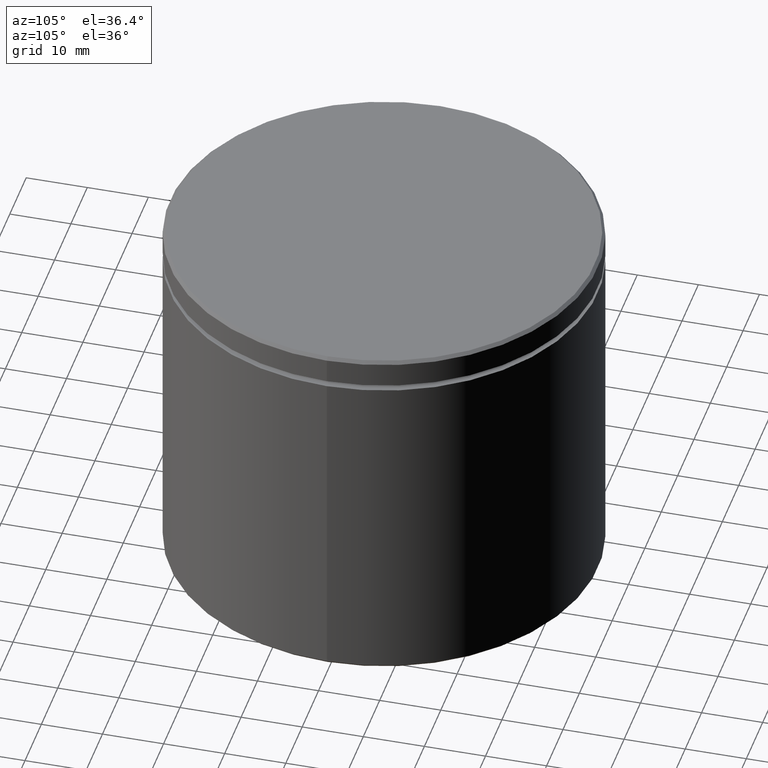
[diagram: clean part render]
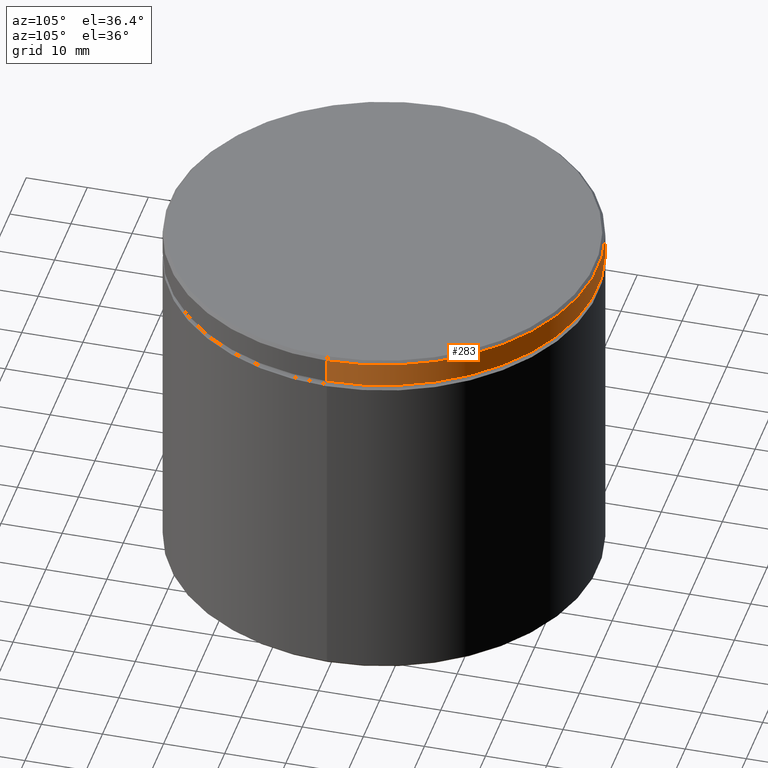
[diagram: same view with one face highlighted and labeled with its STEP entity id]
A machine part, auxiliary view. The second image highlights one B-rep face of the part: STEP entity #283.
In plain terms, the highlighted cylindrical surface (partial cylindrical patch) has radius 35 mm, axis along (-0, -0, 1).
Its self-contained STEP definition (entity closure, byte-faithful):
#26 = EDGE_LOOP ( 'NONE', ( #543, #192, #106, #316 ) ) ;
#27 = VERTEX_POINT ( 'NONE', #367 ) ;
#28 = AXIS2_PLACEMENT_3D ( 'NONE', #562, #87, #421 ) ;
#32 = EDGE_CURVE ( 'NONE', #188, #439, #74, .T. ) ;
#48 = VECTOR ( 'NONE', #539, 1000.000000000000000 ) ;
#56 = CARTESIAN_POINT ( 'NONE',  ( -35.00000000000000000, 4.286263797015736496E-15, -0.4999999999999727995 ) ) ;
#74 = LINE ( 'NONE', #491, #408 ) ;
#87 = DIRECTION ( 'NONE',  ( -0.000000000000000000, -0.000000000000000000, 1.000000000000000000 ) ) ;
#106 = ORIENTED_EDGE ( 'NONE', *, *, #545, .T. ) ;
#127 = AXIS2_PLACEMENT_3D ( 'NONE', #329, #289, #159 ) ;
#135 = DIRECTION ( 'NONE',  ( 1.000000000000000000, 0.000000000000000000, 0.000000000000000000 ) ) ;
#159 = DIRECTION ( 'NONE',  ( 1.000000000000000000, 0.000000000000000000, 0.000000000000000000 ) ) ;
#183 = DIRECTION ( 'NONE',  ( -0.000000000000000000, -0.000000000000000000, 1.000000000000000000 ) ) ;
#188 = VERTEX_POINT ( 'NONE', #264 ) ;
#192 = ORIENTED_EDGE ( 'NONE', *, *, #32, .T. ) ;
#239 = CIRCLE ( 'NONE', #387, 35.00000000000000000 ) ;
#240 = EDGE_CURVE ( 'NONE', #27, #486, #257, .T. ) ;
#257 = LINE ( 'NONE', #354, #48 ) ;
#264 = CARTESIAN_POINT ( 'NONE',  ( -35.00000000000000000, 4.286263797015736496E-15, -4.500000000000000888 ) ) ;
#283 = ADVANCED_FACE ( 'NONE', ( #325 ), #331, .T. ) ;
#289 = DIRECTION ( 'NONE',  ( 0.000000000000000000, 0.000000000000000000, -1.000000000000000000 ) ) ;
#316 = ORIENTED_EDGE ( 'NONE', *, *, #240, .F. ) ;
#325 = FACE_OUTER_BOUND ( 'NONE', #26, .T. ) ;
#329 = CARTESIAN_POINT ( 'NONE',  ( 0.000000000000000000, 0.000000000000000000, -0.4999999999999727995 ) ) ;
#331 = CYLINDRICAL_SURFACE ( 'NONE', #28, 35.00000000000000000 ) ;
#354 = CARTESIAN_POINT ( 'NONE',  ( 35.00000000000000000, 0.000000000000000000, 0.000000000000000000 ) ) ;
#362 = DIRECTION ( 'NONE',  ( -0.000000000000000000, -0.000000000000000000, 1.000000000000000000 ) ) ;
#367 = CARTESIAN_POINT ( 'NONE',  ( 35.00000000000000000, 0.000000000000000000, -4.500000000000000888 ) ) ;
#387 = AXIS2_PLACEMENT_3D ( 'NONE', #428, #183, #135 ) ;
#408 = VECTOR ( 'NONE', #362, 1000.000000000000000 ) ;
#421 = DIRECTION ( 'NONE',  ( 1.000000000000000000, 0.000000000000000000, 0.000000000000000000 ) ) ;
#428 = CARTESIAN_POINT ( 'NONE',  ( 0.000000000000000000, 0.000000000000000000, -4.500000000000000888 ) ) ;
#439 = VERTEX_POINT ( 'NONE', #56 ) ;
#453 = EDGE_CURVE ( 'NONE', #27, #188, #239, .T. ) ;
#457 = CIRCLE ( 'NONE', #127, 35.00000000000000000 ) ;
#486 = VERTEX_POINT ( 'NONE', #536 ) ;
#491 = CARTESIAN_POINT ( 'NONE',  ( -35.00000000000000000, 4.286263797015736496E-15, 0.000000000000000000 ) ) ;
#536 = CARTESIAN_POINT ( 'NONE',  ( 35.00000000000000000, 0.000000000000000000, -0.4999999999999727995 ) ) ;
#539 = DIRECTION ( 'NONE',  ( -0.000000000000000000, -0.000000000000000000, 1.000000000000000000 ) ) ;
#543 = ORIENTED_EDGE ( 'NONE', *, *, #453, .T. ) ;
#545 = EDGE_CURVE ( 'NONE', #439, #486, #457, .T. ) ;
#562 = CARTESIAN_POINT ( 'NONE',  ( 0.000000000000000000, 0.000000000000000000, 0.000000000000000000 ) ) ;